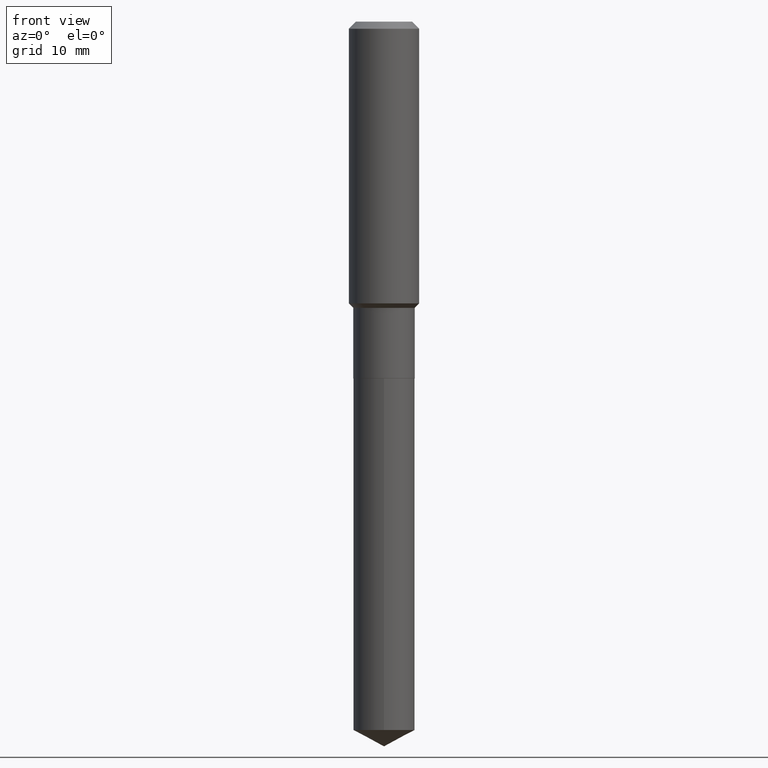
[diagram: clean part render]
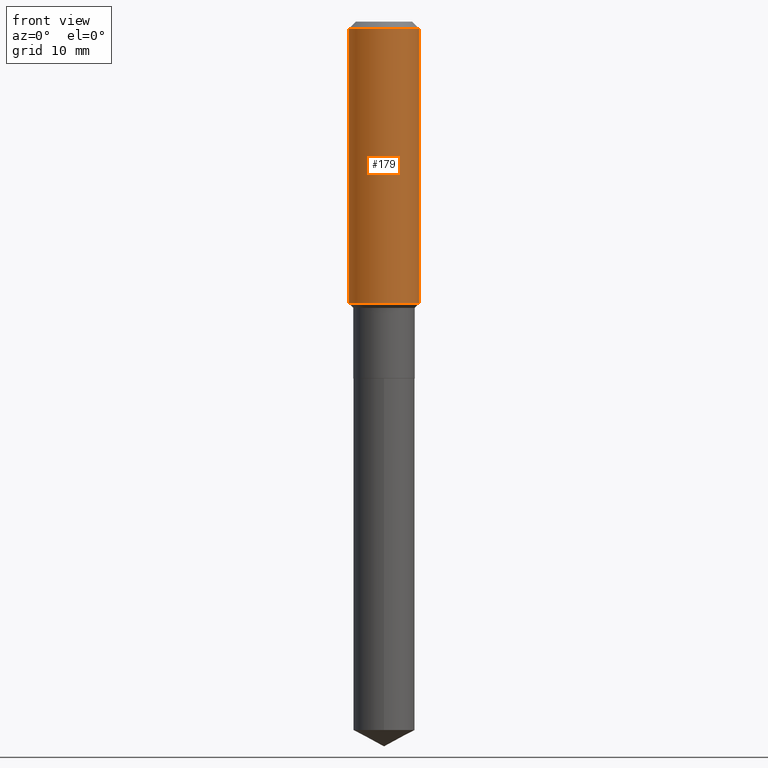
[diagram: same view with one face highlighted and labeled with its STEP entity id]
A machine part, front view. The second image highlights one B-rep face of the part: STEP entity #179.
In plain terms, the highlighted cylindrical surface (edge-blend (fillet) strip) has radius 5 mm, axis along (-0, 0, 1).
Its self-contained STEP definition (entity closure, byte-faithful):
#22 = CARTESIAN_POINT ( 'NONE',  ( 0.1968500000000000250, -1.512055823412797189E-15, -0.03937000000000027283 ) ) ;
#49 = CIRCLE ( 'NONE', #464, 0.1968500000000002192 ) ;
#52 = AXIS2_PLACEMENT_3D ( 'NONE', #397, #210, #106 ) ;
#64 = EDGE_CURVE ( 'NONE', #219, #325, #89, .T. ) ;
#71 = ORIENTED_EDGE ( 'NONE', *, *, #311, .T. ) ;
#77 = ORIENTED_EDGE ( 'NONE', *, *, #64, .F. ) ;
#89 = LINE ( 'NONE', #305, #431 ) ;
#99 = VECTOR ( 'NONE', #331, 39.37007874015748143 ) ;
#101 = DIRECTION ( 'NONE',  ( 1.000000000000000000, -6.982962677686265922E-15, 0.000000000000000000 ) ) ;
#103 = VERTEX_POINT ( 'NONE', #469 ) ;
#106 = DIRECTION ( 'NONE',  ( 1.000000000000000000, -6.982962677686266711E-15, 4.876176775795935793E-29 ) ) ;
#111 = CARTESIAN_POINT ( 'NONE',  ( -0.1968500000000000250, -1.422099313121007378E-15, -0.03937000000000027283 ) ) ;
#121 = CARTESIAN_POINT ( 'NONE',  ( 0.1968500000000001082, -1.374596203102542397E-15, 9.598753983154305062E-30 ) ) ;
#130 = VERTEX_POINT ( 'NONE', #22 ) ;
#159 = EDGE_CURVE ( 'NONE', #219, #103, #49, .T. ) ;
#164 = DIRECTION ( 'NONE',  ( -2.445468806185136877E-29, 3.491481338843145188E-15, 1.000000000000000000 ) ) ;
#166 = CIRCLE ( 'NONE', #236, 0.1968500000000000250 ) ;
#179 = ADVANCED_FACE ( 'NONE', ( #181 ), #436, .T. ) ;
#181 = FACE_OUTER_BOUND ( 'NONE', #248, .T. ) ;
#210 = DIRECTION ( 'NONE',  ( -2.445468806185136597E-29, 3.491481338843145583E-15, 1.000000000000000000 ) ) ;
#216 = CARTESIAN_POINT ( 'NONE',  ( -0.1968500000000002192, -4.105442381275518145E-15, -1.576449999999999685 ) ) ;
#219 = VERTEX_POINT ( 'NONE', #216 ) ;
#236 = AXIS2_PLACEMENT_3D ( 'NONE', #255, #444, #304 ) ;
#247 = CARTESIAN_POINT ( 'NONE',  ( 3.855159299510557695E-29, -5.504145756619275933E-15, -1.576449999999999685 ) ) ;
#248 = EDGE_LOOP ( 'NONE', ( #77, #470, #71, #317 ) ) ;
#255 = CARTESIAN_POINT ( 'NONE',  ( 9.627810689950950651E-31, -1.374596203102555808E-16, -0.03937000000000027283 ) ) ;
#287 = DIRECTION ( 'NONE',  ( -2.445468806185136597E-29, 3.491481338843145583E-15, 1.000000000000000000 ) ) ;
#290 = EDGE_CURVE ( 'NONE', #325, #130, #166, .T. ) ;
#304 = DIRECTION ( 'NONE',  ( 1.000000000000000000, -6.982962677686265922E-15, 0.000000000000000000 ) ) ;
#305 = CARTESIAN_POINT ( 'NONE',  ( -0.1968500000000001082, 1.398703375343757985E-15, -9.682923725166787881E-30 ) ) ;
#311 = EDGE_CURVE ( 'NONE', #103, #130, #411, .T. ) ;
#317 = ORIENTED_EDGE ( 'NONE', *, *, #290, .F. ) ;
#325 = VERTEX_POINT ( 'NONE', #111 ) ;
#331 = DIRECTION ( 'NONE',  ( -2.445468806185136877E-29, 3.491481338843145188E-15, 1.000000000000000000 ) ) ;
#397 = CARTESIAN_POINT ( 'NONE',  ( 0.000000000000000000, 0.000000000000000000, 0.000000000000000000 ) ) ;
#411 = LINE ( 'NONE', #121, #99 ) ;
#431 = VECTOR ( 'NONE', #164, 39.37007874015748143 ) ;
#436 = CYLINDRICAL_SURFACE ( 'NONE', #52, 0.1968500000000001082 ) ;
#444 = DIRECTION ( 'NONE',  ( -2.445468806185136597E-29, 3.491481338843145583E-15, 1.000000000000000000 ) ) ;
#464 = AXIS2_PLACEMENT_3D ( 'NONE', #247, #287, #101 ) ;
#469 = CARTESIAN_POINT ( 'NONE',  ( 0.1968500000000002192, -6.878741959721819908E-15, -1.576449999999999685 ) ) ;
#470 = ORIENTED_EDGE ( 'NONE', *, *, #159, .T. ) ;